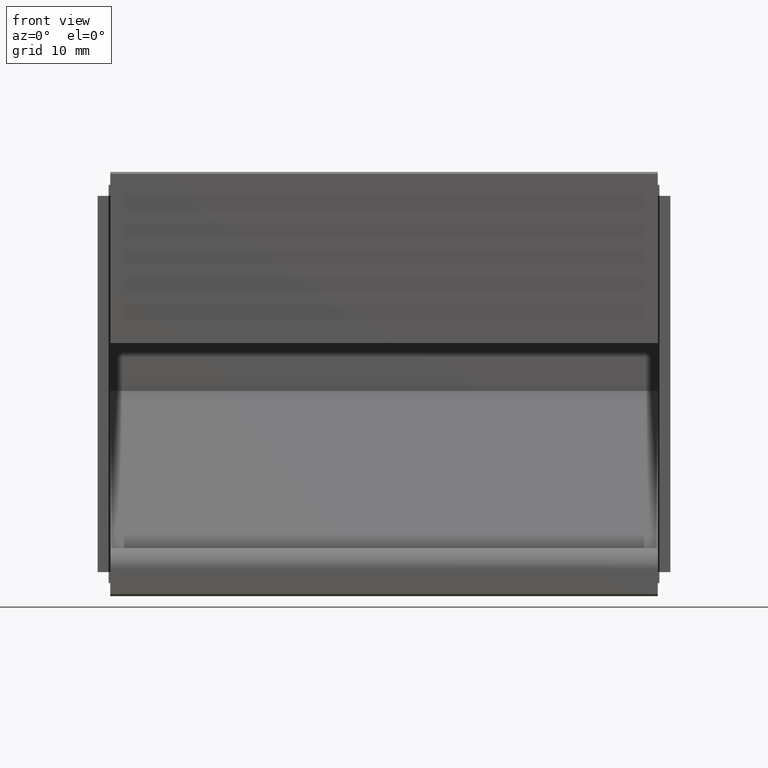
[diagram: clean part render]
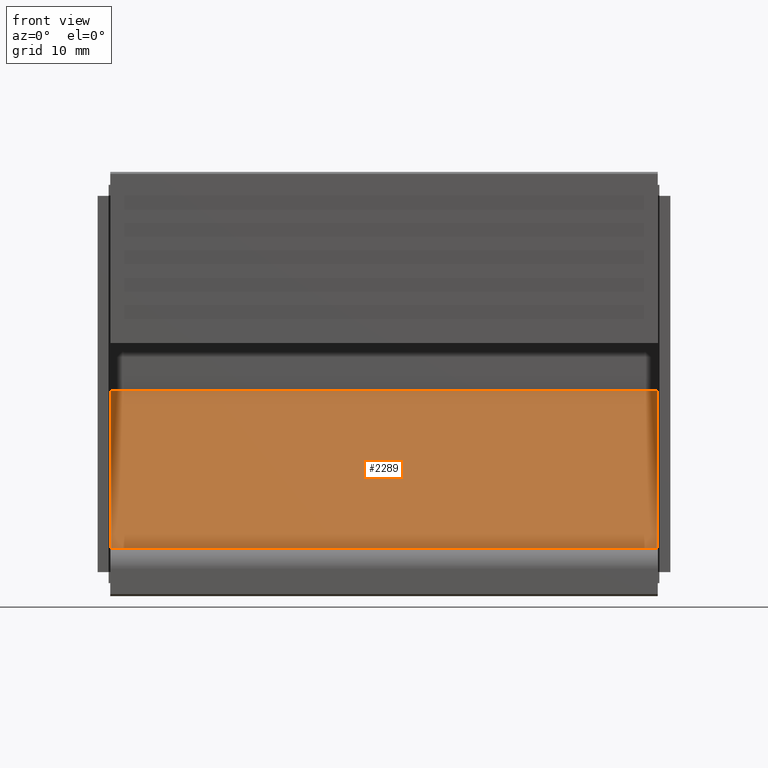
[diagram: same view with one face highlighted and labeled with its STEP entity id]
A machine part, front view. The second image highlights one B-rep face of the part: STEP entity #2289.
In plain terms, the highlighted face is a freeform B-spline surface patch.
Its self-contained STEP definition (entity closure, byte-faithful):
#1255=CARTESIAN_POINT('',(40.0,18.0,30.0));
#1256=VERTEX_POINT('',#1255);
#1262=CARTESIAN_POINT('',(40.0,3.000000000000085,7.0));
#1263=VERTEX_POINT('',#1262);
#1264=CARTESIAN_POINT('',(40.0,18.0,30.0));
#1265=CARTESIAN_POINT('',(40.0,3.000000000000085,7.0));
#1266=QUASI_UNIFORM_CURVE('',1,(#1264,#1265),.UNSPECIFIED.,.F.,.U.);
#1267=EDGE_CURVE('',#1256,#1263,#1266,.T.);
#1469=CARTESIAN_POINT('',(-40.0,3.000000000000085,7.0));
#1470=VERTEX_POINT('',#1469);
#1476=CARTESIAN_POINT('',(-40.0,18.0,30.0));
#1477=VERTEX_POINT('',#1476);
#1478=CARTESIAN_POINT('',(-40.0,18.0,30.0));
#1479=CARTESIAN_POINT('',(-40.0,3.000000000000085,7.0));
#1480=QUASI_UNIFORM_CURVE('',1,(#1478,#1479),.UNSPECIFIED.,.F.,.U.);
#1481=EDGE_CURVE('',#1477,#1470,#1480,.T.);
#2264=CARTESIAN_POINT('',(-40.0,3.000000000000085,7.0));
#2265=CARTESIAN_POINT('',(40.0,3.000000000000085,7.0));
#2266=QUASI_UNIFORM_CURVE('',1,(#2264,#2265),.UNSPECIFIED.,.F.,.U.);
#2267=EDGE_CURVE('',#1470,#1263,#2266,.T.);
#2274=CARTESIAN_POINT('',(-43.995999844944478,18.749249970927089,31.148849955421539));
#2275=CARTESIAN_POINT('',(-43.995999844944478,2.250749626741623,5.851149427670408));
#2276=CARTESIAN_POINT('',(43.996001990711690,18.749249970927089,31.148849955421539));
#2277=CARTESIAN_POINT('',(43.996001990711690,2.250749626741623,5.851149427670408));
#2278=B_SPLINE_SURFACE_WITH_KNOTS('',1,1,((#2274,#2276),(#2275,#2277)),.UNSPECIFIED.,.F.,.F.,.U.,(2,2),(2,2),(0.0,30.202221203064980),(0.0,87.992001835656168),.UNSPECIFIED.);
#2279=ORIENTED_EDGE('',*,*,#1267,.F.);
#2280=CARTESIAN_POINT('',(-40.0,18.0,30.0));
#2281=CARTESIAN_POINT('',(40.0,18.0,30.0));
#2282=QUASI_UNIFORM_CURVE('',1,(#2280,#2281),.UNSPECIFIED.,.F.,.U.);
#2283=EDGE_CURVE('',#1477,#1256,#2282,.T.);
#2284=ORIENTED_EDGE('',*,*,#2283,.F.);
#2285=ORIENTED_EDGE('',*,*,#1481,.T.);
#2286=ORIENTED_EDGE('',*,*,#2267,.T.);
#2287=EDGE_LOOP('',(#2279,#2284,#2285,#2286));
#2288=FACE_OUTER_BOUND('',#2287,.T.);
#2289=ADVANCED_FACE('',(#2288),#2278,.T.);